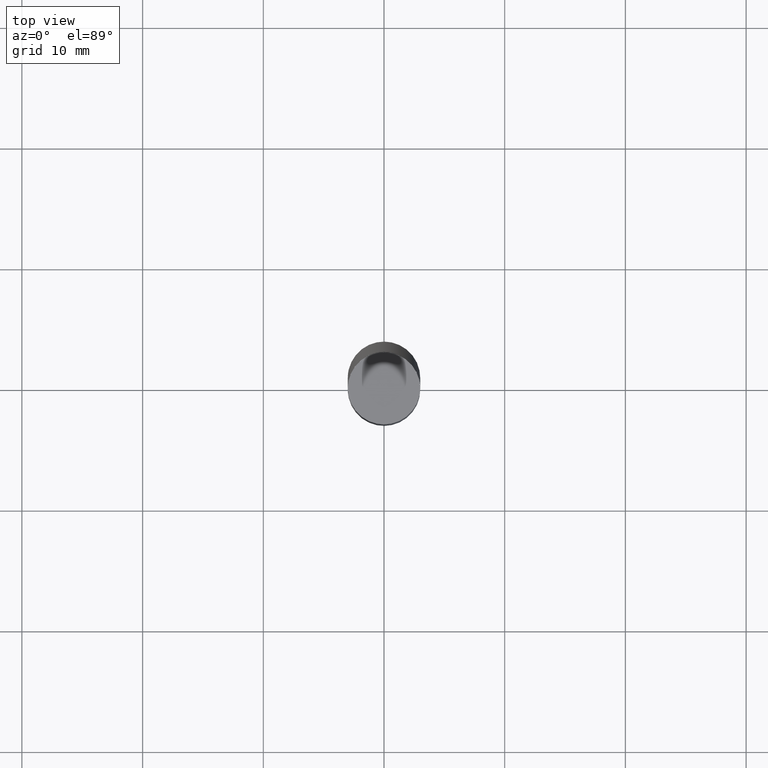
[diagram: clean part render]
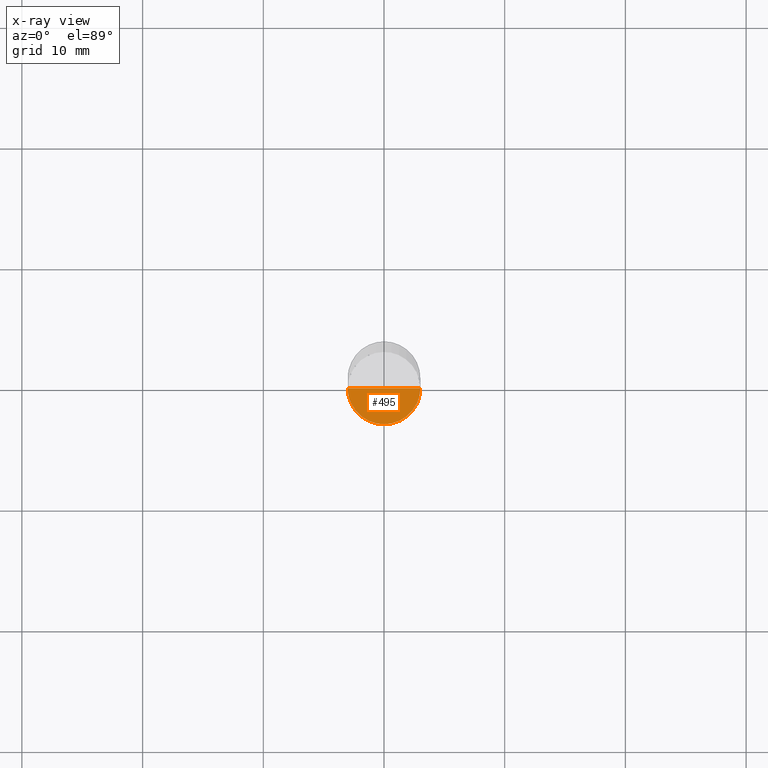
[diagram: x-ray — body ghosted, one internal face saturated and labeled with its STEP entity id]
A machine part, top view, then the same camera in x-ray: the body is ghosted and one INTERNAL B-rep face — a face not visible from any outside direction — is saturated and labeled: STEP entity #495.
In plain terms, the highlighted face is a freeform B-spline surface patch.
Its self-contained STEP definition (entity closure, byte-faithful):
#347=CARTESIAN_POINT('',(3.0,0.0,-0.001));
#351=CARTESIAN_POINT('',(-3.0,0.0,-0.001));
#352=CARTESIAN_POINT('',(0.0,0.0,-0.001));
#359=CARTESIAN_POINT('',(-3.0,-3.0,-0.001));
#360=CARTESIAN_POINT('',(0.0,-3.0,-0.001));
#361=CARTESIAN_POINT('',(3.0,-3.0,-0.001));
#480=(
BOUNDED_SURFACE()
B_SPLINE_SURFACE(1,2,(
(#351,#359,#360,#361,#347),
(#352,#352,#352,#352,#352)
), .UNSPECIFIED.,.F.,.F.,.F.)
B_SPLINE_SURFACE_WITH_KNOTS((2,2),(3,2,3),(
0.0,1.0),(
0.0,0.5,1.0), .UNSPECIFIED.)
GEOMETRIC_REPRESENTATION_ITEM()
RATIONAL_B_SPLINE_SURFACE(((1.0,0.707106781187,1.0,0.707106781187,1.0),
(1.0,0.707106781187,1.0,0.707106781187,1.0)
))
REPRESENTATION_ITEM('')
SURFACE()
);
#481=(
BOUNDED_CURVE()
B_SPLINE_CURVE(1,(#352,#347),.UNSPECIFIED.,.F.,.F.)
B_SPLINE_CURVE_WITH_KNOTS((2,2),
(0.0,1.0),.UNSPECIFIED.)
CURVE()
GEOMETRIC_REPRESENTATION_ITEM()
RATIONAL_B_SPLINE_CURVE((1.0,1.0))
REPRESENTATION_ITEM('')
);
#482=(
BOUNDED_CURVE()
B_SPLINE_CURVE(2,(#347,#361,#360,#359,#351),.UNSPECIFIED.,.F.,.F.)
B_SPLINE_CURVE_WITH_KNOTS((3,2,3),
(0.0,0.5,1.0),.UNSPECIFIED.)
CURVE()
GEOMETRIC_REPRESENTATION_ITEM()
RATIONAL_B_SPLINE_CURVE((1.0,0.707106781187,1.0,0.707106781187,1.0))
REPRESENTATION_ITEM('')
);
#483=(
BOUNDED_CURVE()
B_SPLINE_CURVE(1,(#351,#352),.UNSPECIFIED.,.F.,.F.)
B_SPLINE_CURVE_WITH_KNOTS((2,2),
(0.0,1.0),.UNSPECIFIED.)
CURVE()
GEOMETRIC_REPRESENTATION_ITEM()
RATIONAL_B_SPLINE_CURVE((1.0,1.0))
REPRESENTATION_ITEM('')
);
#484=VERTEX_POINT('',#347);
#485=VERTEX_POINT('',#351);
#486=VERTEX_POINT('',#352);
#487=EDGE_CURVE('',#486,#484,#481,.T.);
#488=EDGE_CURVE('',#484,#485,#482,.T.);
#489=EDGE_CURVE('',#485,#486,#483,.T.);
#490=ORIENTED_EDGE('',*,*,#487,.T.);
#491=ORIENTED_EDGE('',*,*,#488,.T.);
#492=ORIENTED_EDGE('',*,*,#489,.T.);
#493=EDGE_LOOP('',(#490,#491,#492));
#494=FACE_OUTER_BOUND('',#493,.T.);
#495=ADVANCED_FACE('',(#494),#480,.T.);